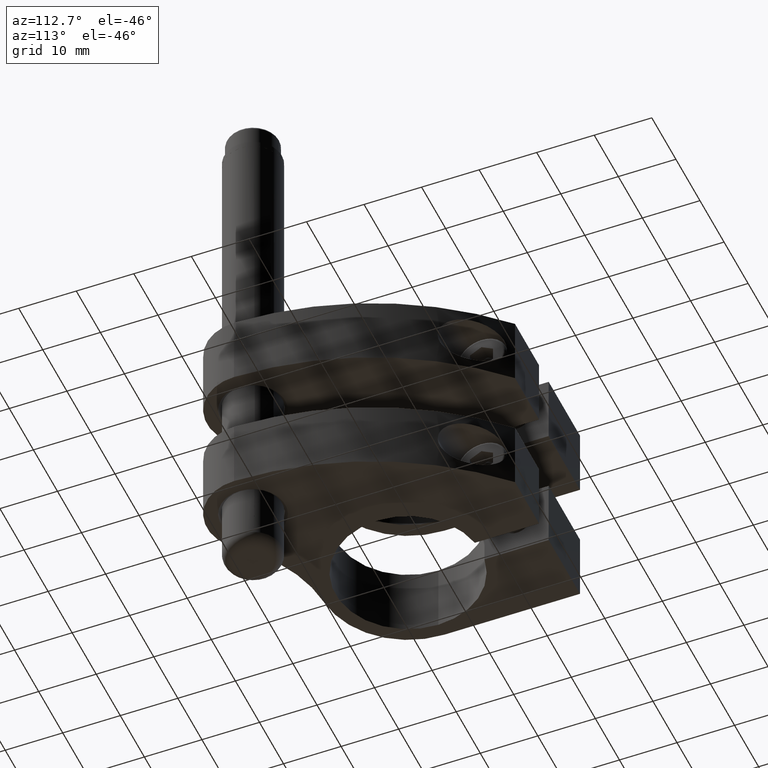
[diagram: clean part render]
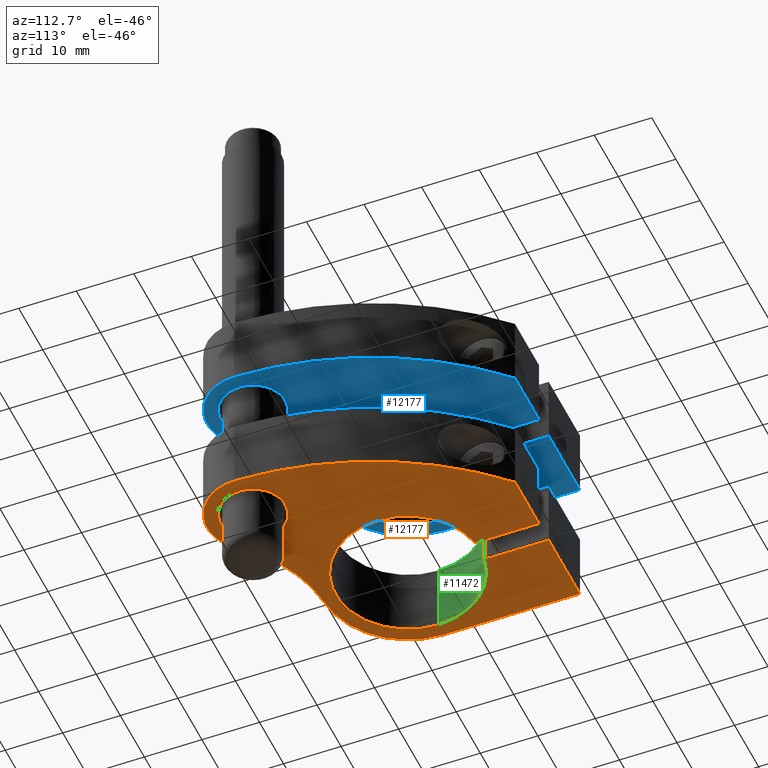
[diagram: same view with three faces highlighted in distinct colors, each labeled with its STEP entity id]
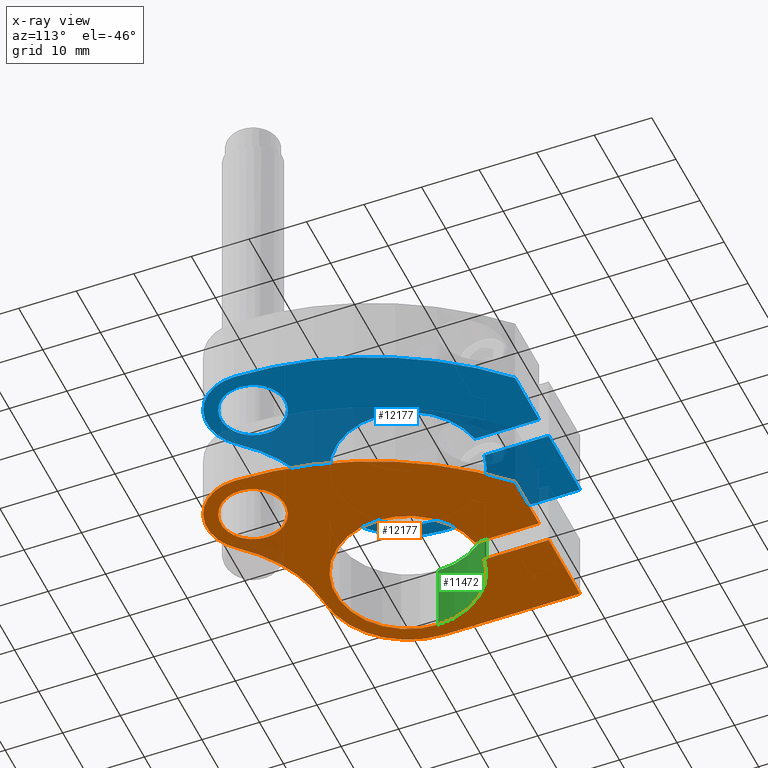
[diagram: x-ray of the same camera — body ghosted, the three highlighted faces saturated]
A machine part, auxiliary view with three faces highlighted in distinct colors.
The next image is the same camera in x-ray (body ghosted, the three faces saturated) — at least one of them is partly hidden behind the body in this view.
Their STEP definitions:

[orange] entity #12177 — the highlighted planar face has unit normal (0, 0, 1).
#125 = CIRCLE ( 'NONE', #8826, 5.600000000000000500 ) ;
#149 = CARTESIAN_POINT ( 'NONE',  ( -2.000000000000000000, 23.60000000000000100, -6.249999999999998200 ) ) ;
#421 = CARTESIAN_POINT ( 'NONE',  ( -15.00000000000000000, 23.60000000000000100, -6.249999999999998200 ) ) ;
#705 = VERTEX_POINT ( 'NONE', #1808 ) ;
#811 = DIRECTION ( 'NONE',  ( -0.0000000000000000000, -0.0000000000000000000, -1.000000000000000000 ) ) ;
#857 = LINE ( 'NONE', #421, #3761 ) ;
#1006 = VERTEX_POINT ( 'NONE', #149 ) ;
#1015 = EDGE_CURVE ( 'NONE', #4919, #7249, #10262, .T. ) ;
#1029 = DIRECTION ( 'NONE',  ( 1.000000000000000000, 0.0000000000000000000, 0.0000000000000000000 ) ) ;
#1055 = CARTESIAN_POINT ( 'NONE',  ( 2.000000000000001800, 12.44025723206718800, -6.249999999999998200 ) ) ;
#1409 = VERTEX_POINT ( 'NONE', #14844 ) ;
#1415 = DIRECTION ( 'NONE',  ( -1.165835659510999200E-016, 1.000000000000000000, -0.0000000000000000000 ) ) ;
#1548 = LINE ( 'NONE', #15163, #13992 ) ;
#1660 = ORIENTED_EDGE ( 'NONE', *, *, #7534, .F. ) ;
#1808 = CARTESIAN_POINT ( 'NONE',  ( 27.19894576531575200, -17.89999999999999900, -6.249999999999998200 ) ) ;
#2129 = CARTESIAN_POINT ( 'NONE',  ( 12.00000000000000000, 23.60000000000000100, -6.249999999999998200 ) ) ;
#2570 = AXIS2_PLACEMENT_3D ( 'NONE', #17492, #5795, #10854 ) ;
#2588 = EDGE_CURVE ( 'NONE', #8577, #705, #3645, .T. ) ;
#3399 = CARTESIAN_POINT ( 'NONE',  ( 0.0000000000000000000, 0.0000000000000000000, -6.249999999999998200 ) ) ;
#3502 = ORIENTED_EDGE ( 'NONE', *, *, #5429, .F. ) ;
#3636 = VERTEX_POINT ( 'NONE', #2129 ) ;
#3645 = CIRCLE ( 'NONE', #14051, 5.600000000000000500 ) ;
#3761 = VECTOR ( 'NONE', #20286, 1000.000000000000000 ) ;
#3805 = FACE_BOUND ( 'NONE', #7169, .T. ) ;
#4026 = CARTESIAN_POINT ( 'NONE',  ( 0.0000000000000000000, 0.0000000000000000000, -6.249999999999998200 ) ) ;
#4531 = CIRCLE ( 'NONE', #6422, 15.00000000000000000 ) ;
#4614 = FACE_OUTER_BOUND ( 'NONE', #11228, .T. ) ;
#4836 = CARTESIAN_POINT ( 'NONE',  ( -2.000000000000000000, 23.60000000000000100, -6.249999999999998200 ) ) ;
#4919 = VERTEX_POINT ( 'NONE', #15589 ) ;
#4984 = EDGE_CURVE ( 'NONE', #705, #8577, #125, .T. ) ;
#5128 = DIRECTION ( 'NONE',  ( -0.0000000000000000000, -0.0000000000000000000, -1.000000000000000000 ) ) ;
#5184 = EDGE_CURVE ( 'NONE', #12224, #3636, #10936, .T. ) ;
#5239 = CARTESIAN_POINT ( 'NONE',  ( -1.999999999999998700, 12.44025723206719100, -6.249999999999998200 ) ) ;
#5246 = DIRECTION ( 'NONE',  ( 0.0000000000000000000, 0.0000000000000000000, 1.000000000000000000 ) ) ;
#5429 = EDGE_CURVE ( 'NONE', #7249, #8018, #13862, .T. ) ;
#5747 = DIRECTION ( 'NONE',  ( -0.0000000000000000000, -0.0000000000000000000, -1.000000000000000000 ) ) ;
#5795 = DIRECTION ( 'NONE',  ( 0.0000000000000000000, 0.0000000000000000000, 1.000000000000000000 ) ) ;
#5863 = ORIENTED_EDGE ( 'NONE', *, *, #20924, .F. ) ;
#6138 = CIRCLE ( 'NONE', #2570, 8.000000000000003600 ) ;
#6319 = DIRECTION ( 'NONE',  ( 1.000000000000000000, 0.0000000000000000000, 0.0000000000000000000 ) ) ;
#6422 = AXIS2_PLACEMENT_3D ( 'NONE', #20507, #10352, #6899 ) ;
#6457 = VECTOR ( 'NONE', #1415, 1000.000000000000000 ) ;
#6609 = ORIENTED_EDGE ( 'NONE', *, *, #14491, .F. ) ;
#6899 = DIRECTION ( 'NONE',  ( -1.000000000000000000, 0.0000000000000000000, 0.0000000000000000000 ) ) ;
#6976 = DIRECTION ( 'NONE',  ( -0.0000000000000000000, -1.000000000000000000, -0.0000000000000000000 ) ) ;
#7078 = DIRECTION ( 'NONE',  ( 1.000000000000000000, 0.0000000000000000000, -0.0000000000000000000 ) ) ;
#7169 = EDGE_LOOP ( 'NONE', ( #21105, #14043 ) ) ;
#7249 = VERTEX_POINT ( 'NONE', #15981 ) ;
#7534 = EDGE_CURVE ( 'NONE', #1409, #15721, #15360, .T. ) ;
#7717 = CARTESIAN_POINT ( 'NONE',  ( 2.000000000000001800, 23.60000000000000100, -6.249999999999998200 ) ) ;
#7804 = ORIENTED_EDGE ( 'NONE', *, *, #1015, .F. ) ;
#7837 = LINE ( 'NONE', #18961, #17314 ) ;
#8018 = VERTEX_POINT ( 'NONE', #5239 ) ;
#8154 = DIRECTION ( 'NONE',  ( -0.0000000000000000000, -0.0000000000000000000, -1.000000000000000000 ) ) ;
#8188 = CARTESIAN_POINT ( 'NONE',  ( -28.90000000000000600, -18.22630751094339600, -6.249999999999998200 ) ) ;
#8577 = VERTEX_POINT ( 'NONE', #15231 ) ;
#8826 = AXIS2_PLACEMENT_3D ( 'NONE', #18835, #12302, #20649 ) ;
#8833 = LINE ( 'NONE', #4836, #6457 ) ;
#9322 = VERTEX_POINT ( 'NONE', #1055 ) ;
#9942 = DIRECTION ( 'NONE',  ( 0.0000000000000000000, 0.0000000000000000000, 1.000000000000000000 ) ) ;
#10034 = ORIENTED_EDGE ( 'NONE', *, *, #17548, .F. ) ;
#10262 = CIRCLE ( 'NONE', #15993, 12.60000000000000000 ) ;
#10275 = ORIENTED_EDGE ( 'NONE', *, *, #5184, .F. ) ;
#10352 = DIRECTION ( 'NONE',  ( 0.0000000000000000000, 0.0000000000000000000, 1.000000000000000000 ) ) ;
#10469 = AXIS2_PLACEMENT_3D ( 'NONE', #17161, #5246, #7078 ) ;
#10770 = EDGE_CURVE ( 'NONE', #9322, #4919, #14860, .T. ) ;
#10854 = DIRECTION ( 'NONE',  ( -1.000000000000000000, 0.0000000000000000000, 0.0000000000000000000 ) ) ;
#10936 = CIRCLE ( 'NONE', #18148, 58.50000000000000700 ) ;
#11228 = EDGE_LOOP ( 'NONE', ( #11905, #19154, #14146, #10275, #15416, #10034, #6609, #1660, #19503, #5863, #3502, #7804 ) ) ;
#11504 = DIRECTION ( 'NONE',  ( 0.0000000000000000000, 0.0000000000000000000, 1.000000000000000000 ) ) ;
#11905 = ORIENTED_EDGE ( 'NONE', *, *, #10770, .F. ) ;
#12177 = ADVANCED_FACE ( 'NONE', ( #3805, #4614 ), #13948, .F. ) ;
#12224 = VERTEX_POINT ( 'NONE', #17665 ) ;
#12302 = DIRECTION ( 'NONE',  ( 0.0000000000000000000, 0.0000000000000000000, 1.000000000000000000 ) ) ;
#12433 = DIRECTION ( 'NONE',  ( -1.000000000000000000, -0.0000000000000000000, -0.0000000000000000000 ) ) ;
#12660 = DIRECTION ( 'NONE',  ( 1.000000000000000000, 0.0000000000000000000, 0.0000000000000000000 ) ) ;
#12921 = CARTESIAN_POINT ( 'NONE',  ( -0.8923113066129466600, -14.97343582923073200, -6.249999999999998200 ) ) ;
#13611 = CARTESIAN_POINT ( 'NONE',  ( -15.00000000000000000, 0.0000000000000000000, -6.249999999999998200 ) ) ;
#13744 = EDGE_CURVE ( 'NONE', #1006, #1409, #857, .T. ) ;
#13862 = CIRCLE ( 'NONE', #21812, 12.60000000000000000 ) ;
#13948 = PLANE ( 'NONE',  #10469 ) ;
#13992 = VECTOR ( 'NONE', #6976, 1000.000000000000000 ) ;
#14043 = ORIENTED_EDGE ( 'NONE', *, *, #4984, .T. ) ;
#14051 = AXIS2_PLACEMENT_3D ( 'NONE', #19948, #9942, #21422 ) ;
#14146 = ORIENTED_EDGE ( 'NONE', *, *, #19305, .F. ) ;
#14491 = EDGE_CURVE ( 'NONE', #15721, #20553, #4531, .T. ) ;
#14627 = EDGE_CURVE ( 'NONE', #17448, #12224, #6138, .T. ) ;
#14844 = CARTESIAN_POINT ( 'NONE',  ( -15.00000000000000000, 23.60000000000000100, -6.249999999999998200 ) ) ;
#14860 = CIRCLE ( 'NONE', #16379, 12.60000000000000000 ) ;
#15163 = CARTESIAN_POINT ( 'NONE',  ( 2.000000000000001800, 12.44025723206718800, -6.249999999999998200 ) ) ;
#15231 = CARTESIAN_POINT ( 'NONE',  ( 15.99894576531575300, -17.89999999999999900, -6.249999999999998200 ) ) ;
#15278 = DIRECTION ( 'NONE',  ( -0.0000000000000000000, -1.000000000000000000, -0.0000000000000000000 ) ) ;
#15360 = LINE ( 'NONE', #13611, #16941 ) ;
#15416 = ORIENTED_EDGE ( 'NONE', *, *, #14627, .F. ) ;
#15589 = CARTESIAN_POINT ( 'NONE',  ( 12.60000000000000000, 1.543054966925665100E-015, -6.249999999999998200 ) ) ;
#15721 = VERTEX_POINT ( 'NONE', #20934 ) ;
#15981 = CARTESIAN_POINT ( 'NONE',  ( -12.60000000000000000, 0.0000000000000000000, -6.249999999999998200 ) ) ;
#15993 = AXIS2_PLACEMENT_3D ( 'NONE', #3399, #5128, #1029 ) ;
#16355 = DIRECTION ( 'NONE',  ( -1.000000000000000000, 0.0000000000000000000, 0.0000000000000000000 ) ) ;
#16379 = AXIS2_PLACEMENT_3D ( 'NONE', #16392, #8154, #6319 ) ;
#16392 = CARTESIAN_POINT ( 'NONE',  ( 0.0000000000000000000, 0.0000000000000000000, -6.249999999999998200 ) ) ;
#16596 = AXIS2_PLACEMENT_3D ( 'NONE', #20999, #811, #12660 ) ;
#16941 = VECTOR ( 'NONE', #15278, 1000.000000000000000 ) ;
#16966 = EDGE_CURVE ( 'NONE', #18965, #9322, #1548, .T. ) ;
#17161 = CARTESIAN_POINT ( 'NONE',  ( 0.0000000000000000000, 0.0000000000000000000, -6.249999999999998200 ) ) ;
#17185 = CARTESIAN_POINT ( 'NONE',  ( 15.53184444409950300, -23.11443012783718100, -6.249999999999998200 ) ) ;
#17314 = VECTOR ( 'NONE', #12433, 1000.000000000000000 ) ;
#17448 = VERTEX_POINT ( 'NONE', #17185 ) ;
#17492 = CARTESIAN_POINT ( 'NONE',  ( 21.59894576531575400, -17.89999999999999900, -6.249999999999998200 ) ) ;
#17548 = EDGE_CURVE ( 'NONE', #20553, #17448, #20530, .T. ) ;
#17665 = CARTESIAN_POINT ( 'NONE',  ( 29.59877875784102800, -17.84830772103865800, -6.249999999999998200 ) ) ;
#18148 = AXIS2_PLACEMENT_3D ( 'NONE', #8188, #11504, #16355 ) ;
#18835 = CARTESIAN_POINT ( 'NONE',  ( 21.59894576531575400, -17.89999999999999900, -6.249999999999998200 ) ) ;
#18961 = CARTESIAN_POINT ( 'NONE',  ( 2.000000000000001800, 23.60000000000000100, -6.249999999999998200 ) ) ;
#18965 = VERTEX_POINT ( 'NONE', #7717 ) ;
#19154 = ORIENTED_EDGE ( 'NONE', *, *, #16966, .F. ) ;
#19305 = EDGE_CURVE ( 'NONE', #3636, #18965, #7837, .T. ) ;
#19503 = ORIENTED_EDGE ( 'NONE', *, *, #13744, .F. ) ;
#19948 = CARTESIAN_POINT ( 'NONE',  ( 21.59894576531575400, -17.89999999999999900, -6.249999999999998200 ) ) ;
#20286 = DIRECTION ( 'NONE',  ( -1.000000000000000000, -0.0000000000000000000, -0.0000000000000000000 ) ) ;
#20507 = CARTESIAN_POINT ( 'NONE',  ( 0.0000000000000000000, 0.0000000000000000000, -6.249999999999998200 ) ) ;
#20530 = CIRCLE ( 'NONE', #16596, 23.50000000000000000 ) ;
#20553 = VERTEX_POINT ( 'NONE', #12921 ) ;
#20649 = DIRECTION ( 'NONE',  ( 1.000000000000000000, 0.0000000000000000000, 0.0000000000000000000 ) ) ;
#20924 = EDGE_CURVE ( 'NONE', #8018, #1006, #8833, .T. ) ;
#20934 = CARTESIAN_POINT ( 'NONE',  ( -15.00000000000000000, 0.0000000000000000000, -6.249999999999998200 ) ) ;
#20999 = CARTESIAN_POINT ( 'NONE',  ( -2.290265686973227900, -38.43181862835888300, -6.249999999999998200 ) ) ;
#21105 = ORIENTED_EDGE ( 'NONE', *, *, #2588, .T. ) ;
#21401 = DIRECTION ( 'NONE',  ( 1.000000000000000000, 0.0000000000000000000, 0.0000000000000000000 ) ) ;
#21422 = DIRECTION ( 'NONE',  ( 1.000000000000000000, 0.0000000000000000000, 0.0000000000000000000 ) ) ;
#21812 = AXIS2_PLACEMENT_3D ( 'NONE', #4026, #5747, #21401 ) ;

[blue] entity #12177 — the highlighted planar face has unit normal (0, 0, 1).
#125 = CIRCLE ( 'NONE', #8826, 5.600000000000000500 ) ;
#149 = CARTESIAN_POINT ( 'NONE',  ( -2.000000000000000000, 23.60000000000000100, -6.249999999999998200 ) ) ;
#421 = CARTESIAN_POINT ( 'NONE',  ( -15.00000000000000000, 23.60000000000000100, -6.249999999999998200 ) ) ;
#705 = VERTEX_POINT ( 'NONE', #1808 ) ;
#811 = DIRECTION ( 'NONE',  ( -0.0000000000000000000, -0.0000000000000000000, -1.000000000000000000 ) ) ;
#857 = LINE ( 'NONE', #421, #3761 ) ;
#1006 = VERTEX_POINT ( 'NONE', #149 ) ;
#1015 = EDGE_CURVE ( 'NONE', #4919, #7249, #10262, .T. ) ;
#1029 = DIRECTION ( 'NONE',  ( 1.000000000000000000, 0.0000000000000000000, 0.0000000000000000000 ) ) ;
#1055 = CARTESIAN_POINT ( 'NONE',  ( 2.000000000000001800, 12.44025723206718800, -6.249999999999998200 ) ) ;
#1409 = VERTEX_POINT ( 'NONE', #14844 ) ;
#1415 = DIRECTION ( 'NONE',  ( -1.165835659510999200E-016, 1.000000000000000000, -0.0000000000000000000 ) ) ;
#1548 = LINE ( 'NONE', #15163, #13992 ) ;
#1660 = ORIENTED_EDGE ( 'NONE', *, *, #7534, .F. ) ;
#1808 = CARTESIAN_POINT ( 'NONE',  ( 27.19894576531575200, -17.89999999999999900, -6.249999999999998200 ) ) ;
#2129 = CARTESIAN_POINT ( 'NONE',  ( 12.00000000000000000, 23.60000000000000100, -6.249999999999998200 ) ) ;
#2570 = AXIS2_PLACEMENT_3D ( 'NONE', #17492, #5795, #10854 ) ;
#2588 = EDGE_CURVE ( 'NONE', #8577, #705, #3645, .T. ) ;
#3399 = CARTESIAN_POINT ( 'NONE',  ( 0.0000000000000000000, 0.0000000000000000000, -6.249999999999998200 ) ) ;
#3502 = ORIENTED_EDGE ( 'NONE', *, *, #5429, .F. ) ;
#3636 = VERTEX_POINT ( 'NONE', #2129 ) ;
#3645 = CIRCLE ( 'NONE', #14051, 5.600000000000000500 ) ;
#3761 = VECTOR ( 'NONE', #20286, 1000.000000000000000 ) ;
#3805 = FACE_BOUND ( 'NONE', #7169, .T. ) ;
#4026 = CARTESIAN_POINT ( 'NONE',  ( 0.0000000000000000000, 0.0000000000000000000, -6.249999999999998200 ) ) ;
#4531 = CIRCLE ( 'NONE', #6422, 15.00000000000000000 ) ;
#4614 = FACE_OUTER_BOUND ( 'NONE', #11228, .T. ) ;
#4836 = CARTESIAN_POINT ( 'NONE',  ( -2.000000000000000000, 23.60000000000000100, -6.249999999999998200 ) ) ;
#4919 = VERTEX_POINT ( 'NONE', #15589 ) ;
#4984 = EDGE_CURVE ( 'NONE', #705, #8577, #125, .T. ) ;
#5128 = DIRECTION ( 'NONE',  ( -0.0000000000000000000, -0.0000000000000000000, -1.000000000000000000 ) ) ;
#5184 = EDGE_CURVE ( 'NONE', #12224, #3636, #10936, .T. ) ;
#5239 = CARTESIAN_POINT ( 'NONE',  ( -1.999999999999998700, 12.44025723206719100, -6.249999999999998200 ) ) ;
#5246 = DIRECTION ( 'NONE',  ( 0.0000000000000000000, 0.0000000000000000000, 1.000000000000000000 ) ) ;
#5429 = EDGE_CURVE ( 'NONE', #7249, #8018, #13862, .T. ) ;
#5747 = DIRECTION ( 'NONE',  ( -0.0000000000000000000, -0.0000000000000000000, -1.000000000000000000 ) ) ;
#5795 = DIRECTION ( 'NONE',  ( 0.0000000000000000000, 0.0000000000000000000, 1.000000000000000000 ) ) ;
#5863 = ORIENTED_EDGE ( 'NONE', *, *, #20924, .F. ) ;
#6138 = CIRCLE ( 'NONE', #2570, 8.000000000000003600 ) ;
#6319 = DIRECTION ( 'NONE',  ( 1.000000000000000000, 0.0000000000000000000, 0.0000000000000000000 ) ) ;
#6422 = AXIS2_PLACEMENT_3D ( 'NONE', #20507, #10352, #6899 ) ;
#6457 = VECTOR ( 'NONE', #1415, 1000.000000000000000 ) ;
#6609 = ORIENTED_EDGE ( 'NONE', *, *, #14491, .F. ) ;
#6899 = DIRECTION ( 'NONE',  ( -1.000000000000000000, 0.0000000000000000000, 0.0000000000000000000 ) ) ;
#6976 = DIRECTION ( 'NONE',  ( -0.0000000000000000000, -1.000000000000000000, -0.0000000000000000000 ) ) ;
#7078 = DIRECTION ( 'NONE',  ( 1.000000000000000000, 0.0000000000000000000, -0.0000000000000000000 ) ) ;
#7169 = EDGE_LOOP ( 'NONE', ( #21105, #14043 ) ) ;
#7249 = VERTEX_POINT ( 'NONE', #15981 ) ;
#7534 = EDGE_CURVE ( 'NONE', #1409, #15721, #15360, .T. ) ;
#7717 = CARTESIAN_POINT ( 'NONE',  ( 2.000000000000001800, 23.60000000000000100, -6.249999999999998200 ) ) ;
#7804 = ORIENTED_EDGE ( 'NONE', *, *, #1015, .F. ) ;
#7837 = LINE ( 'NONE', #18961, #17314 ) ;
#8018 = VERTEX_POINT ( 'NONE', #5239 ) ;
#8154 = DIRECTION ( 'NONE',  ( -0.0000000000000000000, -0.0000000000000000000, -1.000000000000000000 ) ) ;
#8188 = CARTESIAN_POINT ( 'NONE',  ( -28.90000000000000600, -18.22630751094339600, -6.249999999999998200 ) ) ;
#8577 = VERTEX_POINT ( 'NONE', #15231 ) ;
#8826 = AXIS2_PLACEMENT_3D ( 'NONE', #18835, #12302, #20649 ) ;
#8833 = LINE ( 'NONE', #4836, #6457 ) ;
#9322 = VERTEX_POINT ( 'NONE', #1055 ) ;
#9942 = DIRECTION ( 'NONE',  ( 0.0000000000000000000, 0.0000000000000000000, 1.000000000000000000 ) ) ;
#10034 = ORIENTED_EDGE ( 'NONE', *, *, #17548, .F. ) ;
#10262 = CIRCLE ( 'NONE', #15993, 12.60000000000000000 ) ;
#10275 = ORIENTED_EDGE ( 'NONE', *, *, #5184, .F. ) ;
#10352 = DIRECTION ( 'NONE',  ( 0.0000000000000000000, 0.0000000000000000000, 1.000000000000000000 ) ) ;
#10469 = AXIS2_PLACEMENT_3D ( 'NONE', #17161, #5246, #7078 ) ;
#10770 = EDGE_CURVE ( 'NONE', #9322, #4919, #14860, .T. ) ;
#10854 = DIRECTION ( 'NONE',  ( -1.000000000000000000, 0.0000000000000000000, 0.0000000000000000000 ) ) ;
#10936 = CIRCLE ( 'NONE', #18148, 58.50000000000000700 ) ;
#11228 = EDGE_LOOP ( 'NONE', ( #11905, #19154, #14146, #10275, #15416, #10034, #6609, #1660, #19503, #5863, #3502, #7804 ) ) ;
#11504 = DIRECTION ( 'NONE',  ( 0.0000000000000000000, 0.0000000000000000000, 1.000000000000000000 ) ) ;
#11905 = ORIENTED_EDGE ( 'NONE', *, *, #10770, .F. ) ;
#12177 = ADVANCED_FACE ( 'NONE', ( #3805, #4614 ), #13948, .F. ) ;
#12224 = VERTEX_POINT ( 'NONE', #17665 ) ;
#12302 = DIRECTION ( 'NONE',  ( 0.0000000000000000000, 0.0000000000000000000, 1.000000000000000000 ) ) ;
#12433 = DIRECTION ( 'NONE',  ( -1.000000000000000000, -0.0000000000000000000, -0.0000000000000000000 ) ) ;
#12660 = DIRECTION ( 'NONE',  ( 1.000000000000000000, 0.0000000000000000000, 0.0000000000000000000 ) ) ;
#12921 = CARTESIAN_POINT ( 'NONE',  ( -0.8923113066129466600, -14.97343582923073200, -6.249999999999998200 ) ) ;
#13611 = CARTESIAN_POINT ( 'NONE',  ( -15.00000000000000000, 0.0000000000000000000, -6.249999999999998200 ) ) ;
#13744 = EDGE_CURVE ( 'NONE', #1006, #1409, #857, .T. ) ;
#13862 = CIRCLE ( 'NONE', #21812, 12.60000000000000000 ) ;
#13948 = PLANE ( 'NONE',  #10469 ) ;
#13992 = VECTOR ( 'NONE', #6976, 1000.000000000000000 ) ;
#14043 = ORIENTED_EDGE ( 'NONE', *, *, #4984, .T. ) ;
#14051 = AXIS2_PLACEMENT_3D ( 'NONE', #19948, #9942, #21422 ) ;
#14146 = ORIENTED_EDGE ( 'NONE', *, *, #19305, .F. ) ;
#14491 = EDGE_CURVE ( 'NONE', #15721, #20553, #4531, .T. ) ;
#14627 = EDGE_CURVE ( 'NONE', #17448, #12224, #6138, .T. ) ;
#14844 = CARTESIAN_POINT ( 'NONE',  ( -15.00000000000000000, 23.60000000000000100, -6.249999999999998200 ) ) ;
#14860 = CIRCLE ( 'NONE', #16379, 12.60000000000000000 ) ;
#15163 = CARTESIAN_POINT ( 'NONE',  ( 2.000000000000001800, 12.44025723206718800, -6.249999999999998200 ) ) ;
#15231 = CARTESIAN_POINT ( 'NONE',  ( 15.99894576531575300, -17.89999999999999900, -6.249999999999998200 ) ) ;
#15278 = DIRECTION ( 'NONE',  ( -0.0000000000000000000, -1.000000000000000000, -0.0000000000000000000 ) ) ;
#15360 = LINE ( 'NONE', #13611, #16941 ) ;
#15416 = ORIENTED_EDGE ( 'NONE', *, *, #14627, .F. ) ;
#15589 = CARTESIAN_POINT ( 'NONE',  ( 12.60000000000000000, 1.543054966925665100E-015, -6.249999999999998200 ) ) ;
#15721 = VERTEX_POINT ( 'NONE', #20934 ) ;
#15981 = CARTESIAN_POINT ( 'NONE',  ( -12.60000000000000000, 0.0000000000000000000, -6.249999999999998200 ) ) ;
#15993 = AXIS2_PLACEMENT_3D ( 'NONE', #3399, #5128, #1029 ) ;
#16355 = DIRECTION ( 'NONE',  ( -1.000000000000000000, 0.0000000000000000000, 0.0000000000000000000 ) ) ;
#16379 = AXIS2_PLACEMENT_3D ( 'NONE', #16392, #8154, #6319 ) ;
#16392 = CARTESIAN_POINT ( 'NONE',  ( 0.0000000000000000000, 0.0000000000000000000, -6.249999999999998200 ) ) ;
#16596 = AXIS2_PLACEMENT_3D ( 'NONE', #20999, #811, #12660 ) ;
#16941 = VECTOR ( 'NONE', #15278, 1000.000000000000000 ) ;
#16966 = EDGE_CURVE ( 'NONE', #18965, #9322, #1548, .T. ) ;
#17161 = CARTESIAN_POINT ( 'NONE',  ( 0.0000000000000000000, 0.0000000000000000000, -6.249999999999998200 ) ) ;
#17185 = CARTESIAN_POINT ( 'NONE',  ( 15.53184444409950300, -23.11443012783718100, -6.249999999999998200 ) ) ;
#17314 = VECTOR ( 'NONE', #12433, 1000.000000000000000 ) ;
#17448 = VERTEX_POINT ( 'NONE', #17185 ) ;
#17492 = CARTESIAN_POINT ( 'NONE',  ( 21.59894576531575400, -17.89999999999999900, -6.249999999999998200 ) ) ;
#17548 = EDGE_CURVE ( 'NONE', #20553, #17448, #20530, .T. ) ;
#17665 = CARTESIAN_POINT ( 'NONE',  ( 29.59877875784102800, -17.84830772103865800, -6.249999999999998200 ) ) ;
#18148 = AXIS2_PLACEMENT_3D ( 'NONE', #8188, #11504, #16355 ) ;
#18835 = CARTESIAN_POINT ( 'NONE',  ( 21.59894576531575400, -17.89999999999999900, -6.249999999999998200 ) ) ;
#18961 = CARTESIAN_POINT ( 'NONE',  ( 2.000000000000001800, 23.60000000000000100, -6.249999999999998200 ) ) ;
#18965 = VERTEX_POINT ( 'NONE', #7717 ) ;
#19154 = ORIENTED_EDGE ( 'NONE', *, *, #16966, .F. ) ;
#19305 = EDGE_CURVE ( 'NONE', #3636, #18965, #7837, .T. ) ;
#19503 = ORIENTED_EDGE ( 'NONE', *, *, #13744, .F. ) ;
#19948 = CARTESIAN_POINT ( 'NONE',  ( 21.59894576531575400, -17.89999999999999900, -6.249999999999998200 ) ) ;
#20286 = DIRECTION ( 'NONE',  ( -1.000000000000000000, -0.0000000000000000000, -0.0000000000000000000 ) ) ;
#20507 = CARTESIAN_POINT ( 'NONE',  ( 0.0000000000000000000, 0.0000000000000000000, -6.249999999999998200 ) ) ;
#20530 = CIRCLE ( 'NONE', #16596, 23.50000000000000000 ) ;
#20553 = VERTEX_POINT ( 'NONE', #12921 ) ;
#20649 = DIRECTION ( 'NONE',  ( 1.000000000000000000, 0.0000000000000000000, 0.0000000000000000000 ) ) ;
#20924 = EDGE_CURVE ( 'NONE', #8018, #1006, #8833, .T. ) ;
#20934 = CARTESIAN_POINT ( 'NONE',  ( -15.00000000000000000, 0.0000000000000000000, -6.249999999999998200 ) ) ;
#20999 = CARTESIAN_POINT ( 'NONE',  ( -2.290265686973227900, -38.43181862835888300, -6.249999999999998200 ) ) ;
#21105 = ORIENTED_EDGE ( 'NONE', *, *, #2588, .T. ) ;
#21401 = DIRECTION ( 'NONE',  ( 1.000000000000000000, 0.0000000000000000000, 0.0000000000000000000 ) ) ;
#21422 = DIRECTION ( 'NONE',  ( 1.000000000000000000, 0.0000000000000000000, 0.0000000000000000000 ) ) ;
#21812 = AXIS2_PLACEMENT_3D ( 'NONE', #4026, #5747, #21401 ) ;

[green] entity #11472 — the highlighted cylindrical surface (partial cylindrical patch) has radius 12.6 mm, axis along (-0, -0, -1).
#952 = EDGE_CURVE ( 'NONE', #2105, #8018, #1009, .T. ) ;
#1009 = LINE ( 'NONE', #8225, #13447 ) ;
#1173 = CARTESIAN_POINT ( 'NONE',  ( 0.0000000000000000000, 0.0000000000000000000, 6.249999999999998200 ) ) ;
#1380 = DIRECTION ( 'NONE',  ( 1.000000000000000000, 0.0000000000000000000, 0.0000000000000000000 ) ) ;
#2105 = VERTEX_POINT ( 'NONE', #18600 ) ;
#2639 = AXIS2_PLACEMENT_3D ( 'NONE', #1173, #21651, #1380 ) ;
#3333 = ORIENTED_EDGE ( 'NONE', *, *, #7824, .F. ) ;
#4026 = CARTESIAN_POINT ( 'NONE',  ( 0.0000000000000000000, 0.0000000000000000000, -6.249999999999998200 ) ) ;
#5239 = CARTESIAN_POINT ( 'NONE',  ( -1.999999999999998700, 12.44025723206719100, -6.249999999999998200 ) ) ;
#5429 = EDGE_CURVE ( 'NONE', #7249, #8018, #13862, .T. ) ;
#5747 = DIRECTION ( 'NONE',  ( -0.0000000000000000000, -0.0000000000000000000, -1.000000000000000000 ) ) ;
#6619 = EDGE_LOOP ( 'NONE', ( #3333, #9317, #17094, #15129 ) ) ;
#6792 = EDGE_CURVE ( 'NONE', #18940, #7249, #16959, .T. ) ;
#7249 = VERTEX_POINT ( 'NONE', #15981 ) ;
#7757 = DIRECTION ( 'NONE',  ( -0.0000000000000000000, -0.0000000000000000000, -1.000000000000000000 ) ) ;
#7824 = EDGE_CURVE ( 'NONE', #18940, #2105, #17697, .T. ) ;
#8006 = VECTOR ( 'NONE', #7757, 1000.000000000000000 ) ;
#8018 = VERTEX_POINT ( 'NONE', #5239 ) ;
#8225 = CARTESIAN_POINT ( 'NONE',  ( -1.999999999999998700, 12.44025723206719100, 6.249999999999998200 ) ) ;
#9317 = ORIENTED_EDGE ( 'NONE', *, *, #6792, .T. ) ;
#10187 = AXIS2_PLACEMENT_3D ( 'NONE', #15700, #19228, #10611 ) ;
#10611 = DIRECTION ( 'NONE',  ( -1.000000000000000000, 0.0000000000000000000, 0.0000000000000000000 ) ) ;
#11012 = CARTESIAN_POINT ( 'NONE',  ( -12.60000000000000000, 0.0000000000000000000, 6.249999999999998200 ) ) ;
#11472 = ADVANCED_FACE ( 'NONE', ( #14622 ), #15676, .F. ) ;
#13447 = VECTOR ( 'NONE', #21682, 1000.000000000000000 ) ;
#13862 = CIRCLE ( 'NONE', #21812, 12.60000000000000000 ) ;
#14180 = CARTESIAN_POINT ( 'NONE',  ( -12.60000000000000000, 0.0000000000000000000, 6.249999999999998200 ) ) ;
#14622 = FACE_OUTER_BOUND ( 'NONE', #6619, .T. ) ;
#15129 = ORIENTED_EDGE ( 'NONE', *, *, #952, .F. ) ;
#15676 = CYLINDRICAL_SURFACE ( 'NONE', #10187, 12.60000000000000000 ) ;
#15700 = CARTESIAN_POINT ( 'NONE',  ( 0.0000000000000000000, 0.0000000000000000000, 6.249999999999998200 ) ) ;
#15981 = CARTESIAN_POINT ( 'NONE',  ( -12.60000000000000000, 0.0000000000000000000, -6.249999999999998200 ) ) ;
#16959 = LINE ( 'NONE', #14180, #8006 ) ;
#17094 = ORIENTED_EDGE ( 'NONE', *, *, #5429, .T. ) ;
#17697 = CIRCLE ( 'NONE', #2639, 12.60000000000000000 ) ;
#18600 = CARTESIAN_POINT ( 'NONE',  ( -1.999999999999998700, 12.44025723206719100, 6.249999999999998200 ) ) ;
#18940 = VERTEX_POINT ( 'NONE', #11012 ) ;
#19228 = DIRECTION ( 'NONE',  ( -0.0000000000000000000, -0.0000000000000000000, -1.000000000000000000 ) ) ;
#21401 = DIRECTION ( 'NONE',  ( 1.000000000000000000, 0.0000000000000000000, 0.0000000000000000000 ) ) ;
#21651 = DIRECTION ( 'NONE',  ( -0.0000000000000000000, -0.0000000000000000000, -1.000000000000000000 ) ) ;
#21682 = DIRECTION ( 'NONE',  ( -0.0000000000000000000, -0.0000000000000000000, -1.000000000000000000 ) ) ;
#21812 = AXIS2_PLACEMENT_3D ( 'NONE', #4026, #5747, #21401 ) ;